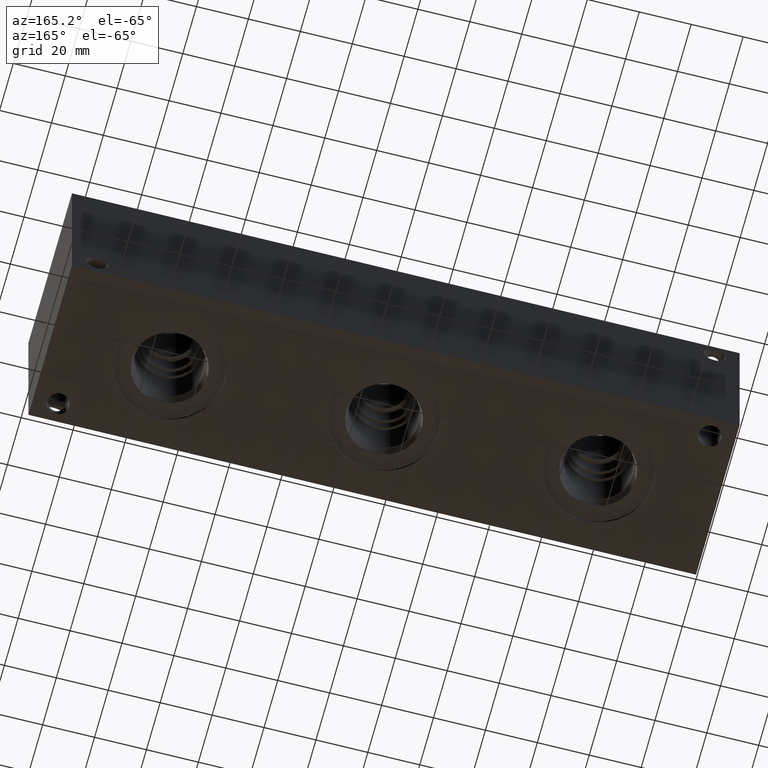
[diagram: clean part render]
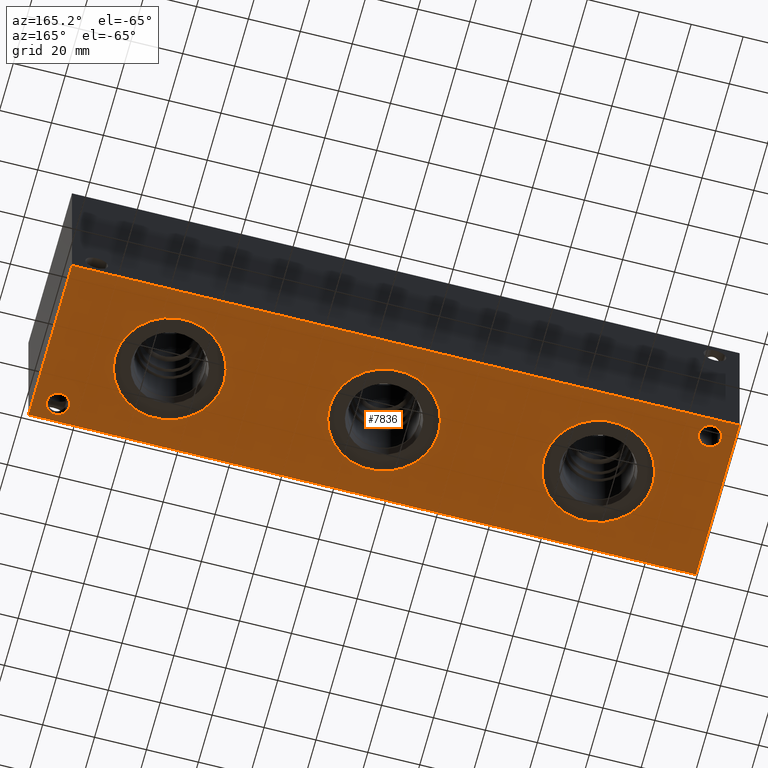
[diagram: same view with one face highlighted and labeled with its STEP entity id]
A machine part, auxiliary view. The second image highlights one B-rep face of the part: STEP entity #7836.
In plain terms, the highlighted planar face has unit normal (0, 0, 1).
Its self-contained STEP definition (entity closure, byte-faithful):
#94=CIRCLE('',#8076,21.0185);
#95=CIRCLE('',#8077,21.0185);
#105=CIRCLE('',#8092,21.0185);
#106=CIRCLE('',#8093,21.0185);
#144=CIRCLE('',#8154,21.0185);
#145=CIRCLE('',#8155,21.0185);
#211=CIRCLE('',#8273,4.3688);
#212=CIRCLE('',#8275,4.3688);
#260=FACE_BOUND('',#1420,.T.);
#261=FACE_BOUND('',#1421,.T.);
#262=FACE_BOUND('',#1422,.T.);
#263=FACE_BOUND('',#1423,.T.);
#264=FACE_BOUND('',#1424,.T.);
#974=FACE_OUTER_BOUND('',#1419,.T.);
#1419=EDGE_LOOP('',(#6883,#6884,#6885,#6886));
#1420=EDGE_LOOP('',(#6887,#6888));
#1421=EDGE_LOOP('',(#6889,#6890));
#1422=EDGE_LOOP('',(#6891,#6892));
#1423=EDGE_LOOP('',(#6893));
#1424=EDGE_LOOP('',(#6894));
#2159=LINE('',#13436,#2901);
#2162=LINE('',#13441,#2904);
#2164=LINE('',#13445,#2906);
#2166=LINE('',#13448,#2908);
#2901=VECTOR('',#9870,10.);
#2904=VECTOR('',#9875,10.);
#2906=VECTOR('',#9879,10.);
#2908=VECTOR('',#9883,10.);
#3507=VERTEX_POINT('',#13048);
#3508=VERTEX_POINT('',#13049);
#3518=VERTEX_POINT('',#13079);
#3519=VERTEX_POINT('',#13080);
#3557=VERTEX_POINT('',#13199);
#3558=VERTEX_POINT('',#13200);
#3628=VERTEX_POINT('',#13426);
#3629=VERTEX_POINT('',#13430);
#3630=VERTEX_POINT('',#13434);
#3631=VERTEX_POINT('',#13435);
#3632=VERTEX_POINT('',#13440);
#3633=VERTEX_POINT('',#13444);
#4524=EDGE_CURVE('',#3507,#3508,#94,.T.);
#4525=EDGE_CURVE('',#3508,#3507,#95,.T.);
#4539=EDGE_CURVE('',#3518,#3519,#105,.T.);
#4540=EDGE_CURVE('',#3519,#3518,#106,.T.);
#4597=EDGE_CURVE('',#3557,#3558,#144,.T.);
#4598=EDGE_CURVE('',#3558,#3557,#145,.T.);
#4710=EDGE_CURVE('',#3628,#3628,#211,.T.);
#4712=EDGE_CURVE('',#3629,#3629,#212,.T.);
#4713=EDGE_CURVE('',#3630,#3631,#2159,.T.);
#4716=EDGE_CURVE('',#3632,#3630,#2162,.T.);
#4718=EDGE_CURVE('',#3633,#3632,#2164,.T.);
#4720=EDGE_CURVE('',#3631,#3633,#2166,.T.);
#6883=ORIENTED_EDGE('',*,*,#4720,.F.);
#6884=ORIENTED_EDGE('',*,*,#4713,.F.);
#6885=ORIENTED_EDGE('',*,*,#4716,.F.);
#6886=ORIENTED_EDGE('',*,*,#4718,.F.);
#6887=ORIENTED_EDGE('',*,*,#4524,.T.);
#6888=ORIENTED_EDGE('',*,*,#4525,.T.);
#6889=ORIENTED_EDGE('',*,*,#4539,.T.);
#6890=ORIENTED_EDGE('',*,*,#4540,.T.);
#6891=ORIENTED_EDGE('',*,*,#4597,.T.);
#6892=ORIENTED_EDGE('',*,*,#4598,.T.);
#6893=ORIENTED_EDGE('',*,*,#4710,.T.);
#6894=ORIENTED_EDGE('',*,*,#4712,.T.);
#7126=PLANE('',#8281);
#7836=ADVANCED_FACE('',(#974,#260,#261,#262,#263,#264),#7126,.F.);
#8076=AXIS2_PLACEMENT_3D('',#13050,#9406,#9407);
#8077=AXIS2_PLACEMENT_3D('',#13051,#9408,#9409);
#8092=AXIS2_PLACEMENT_3D('',#13081,#9442,#9443);
#8093=AXIS2_PLACEMENT_3D('',#13082,#9444,#9445);
#8154=AXIS2_PLACEMENT_3D('',#13201,#9585,#9586);
#8155=AXIS2_PLACEMENT_3D('',#13202,#9587,#9588);
#8273=AXIS2_PLACEMENT_3D('',#13428,#9861,#9862);
#8275=AXIS2_PLACEMENT_3D('',#13432,#9866,#9867);
#8281=AXIS2_PLACEMENT_3D('',#13450,#9886,#9887);
#9406=DIRECTION('center_axis',(0.,0.,1.));
#9407=DIRECTION('ref_axis',(1.,0.,0.));
#9408=DIRECTION('center_axis',(0.,0.,1.));
#9409=DIRECTION('ref_axis',(1.,0.,0.));
#9442=DIRECTION('center_axis',(0.,0.,1.));
#9443=DIRECTION('ref_axis',(1.,0.,0.));
#9444=DIRECTION('center_axis',(0.,0.,1.));
#9445=DIRECTION('ref_axis',(1.,0.,0.));
#9585=DIRECTION('center_axis',(0.,0.,1.));
#9586=DIRECTION('ref_axis',(1.,0.,0.));
#9587=DIRECTION('center_axis',(0.,0.,1.));
#9588=DIRECTION('ref_axis',(1.,0.,0.));
#9861=DIRECTION('center_axis',(0.,0.,1.));
#9862=DIRECTION('ref_axis',(1.,0.,0.));
#9866=DIRECTION('center_axis',(0.,0.,1.));
#9867=DIRECTION('ref_axis',(1.,0.,0.));
#9870=DIRECTION('',(0.,-1.,0.));
#9875=DIRECTION('',(-1.,0.,0.));
#9879=DIRECTION('',(0.,1.,0.));
#9883=DIRECTION('',(1.,0.,0.));
#9886=DIRECTION('center_axis',(0.,0.,1.));
#9887=DIRECTION('ref_axis',(1.,0.,0.));
#13048=CARTESIAN_POINT('',(232.1433,31.75,0.));
#13049=CARTESIAN_POINT('',(190.1063,31.75,0.));
#13050=CARTESIAN_POINT('Origin',(211.1248,31.75,0.));
#13051=CARTESIAN_POINT('Origin',(211.1248,31.75,0.));
#13079=CARTESIAN_POINT('',(149.5933,31.75,0.));
#13080=CARTESIAN_POINT('',(107.5563,31.75,0.));
#13081=CARTESIAN_POINT('Origin',(128.5748,31.75,0.));
#13082=CARTESIAN_POINT('Origin',(128.5748,31.75,0.));
#13199=CARTESIAN_POINT('',(67.0433,31.75,0.));
#13200=CARTESIAN_POINT('',(25.0063,31.75,0.));
#13201=CARTESIAN_POINT('Origin',(46.0248,31.75,0.));
#13202=CARTESIAN_POINT('Origin',(46.0248,31.75,0.));
#13426=CARTESIAN_POINT('',(5.1562,56.3626,0.));
#13428=CARTESIAN_POINT('Origin',(9.525,56.3626,0.));
#13430=CARTESIAN_POINT('',(243.2812,7.1374,0.));
#13432=CARTESIAN_POINT('Origin',(247.65,7.1374,0.));
#13434=CARTESIAN_POINT('',(0.,63.5,0.));
#13435=CARTESIAN_POINT('',(0.,0.,0.));
#13436=CARTESIAN_POINT('',(0.,63.5,0.));
#13440=CARTESIAN_POINT('',(257.175,63.5,0.));
#13441=CARTESIAN_POINT('',(257.175,63.5,0.));
#13444=CARTESIAN_POINT('',(257.175,0.,0.));
#13445=CARTESIAN_POINT('',(257.175,0.,0.));
#13448=CARTESIAN_POINT('',(0.,0.,0.));
#13450=CARTESIAN_POINT('Origin',(128.5875,31.75,0.));